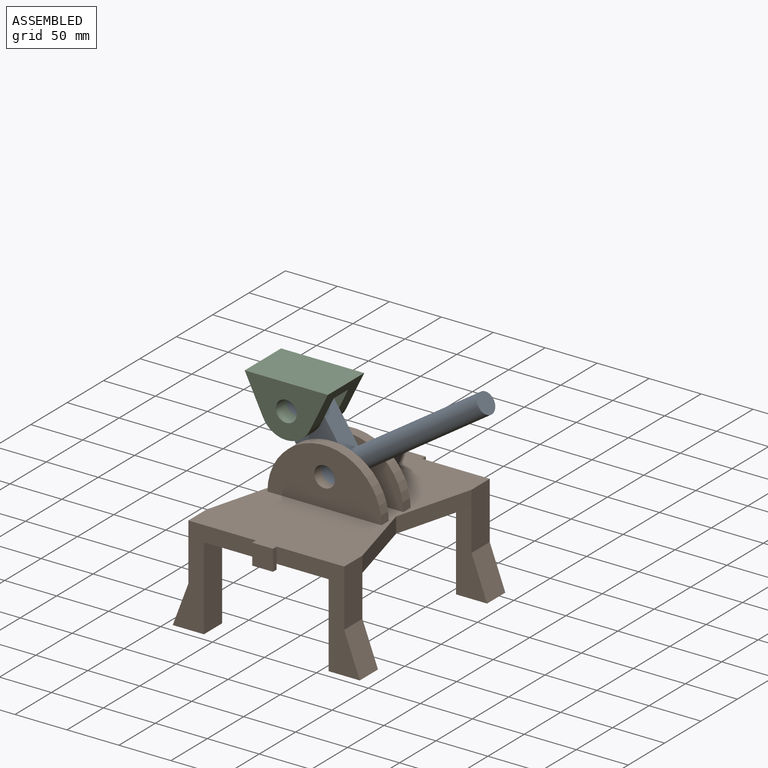
[diagram: assembled view]
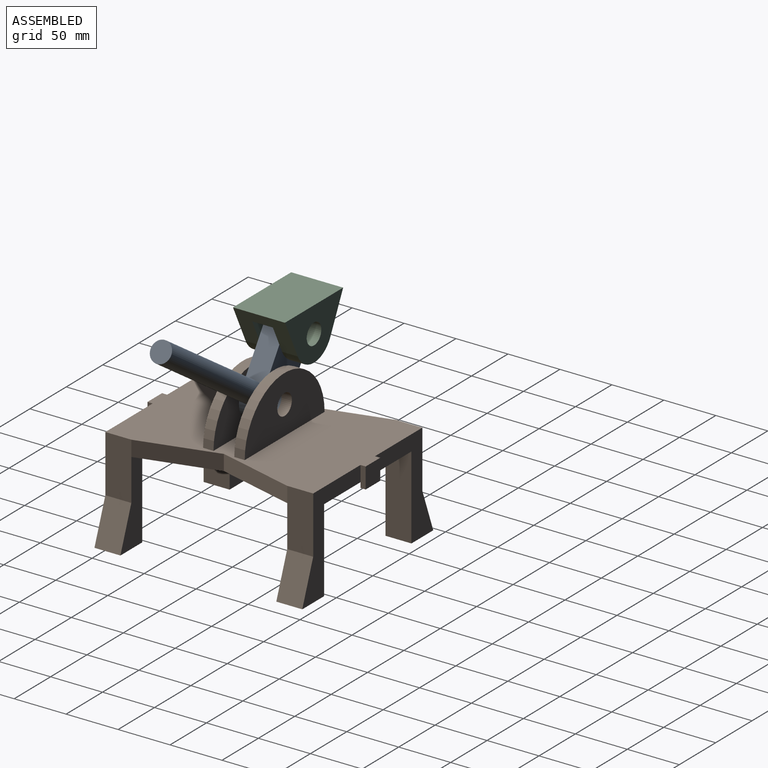
[diagram: assembled view, second angle]
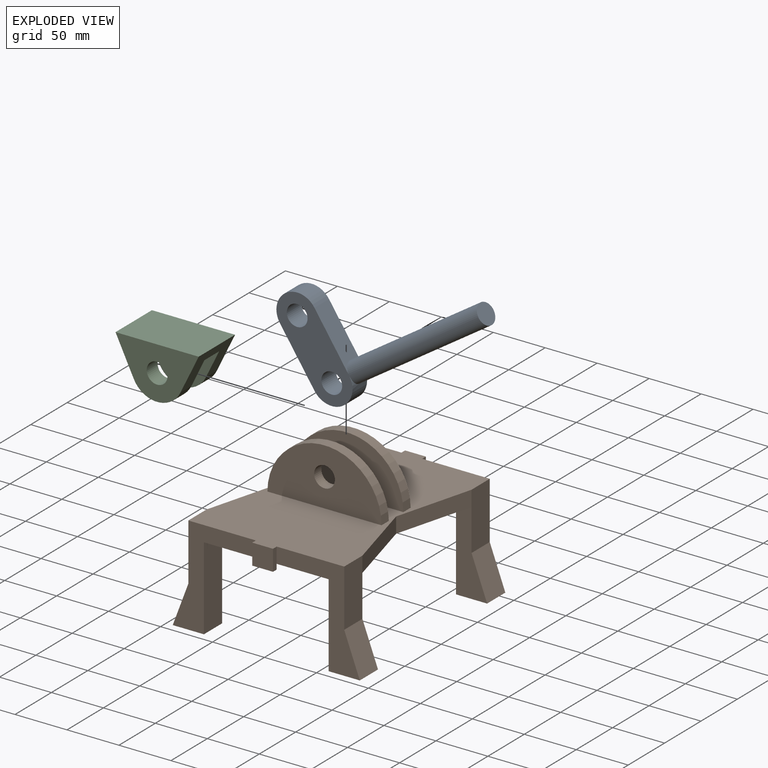
[diagram: exploded view]
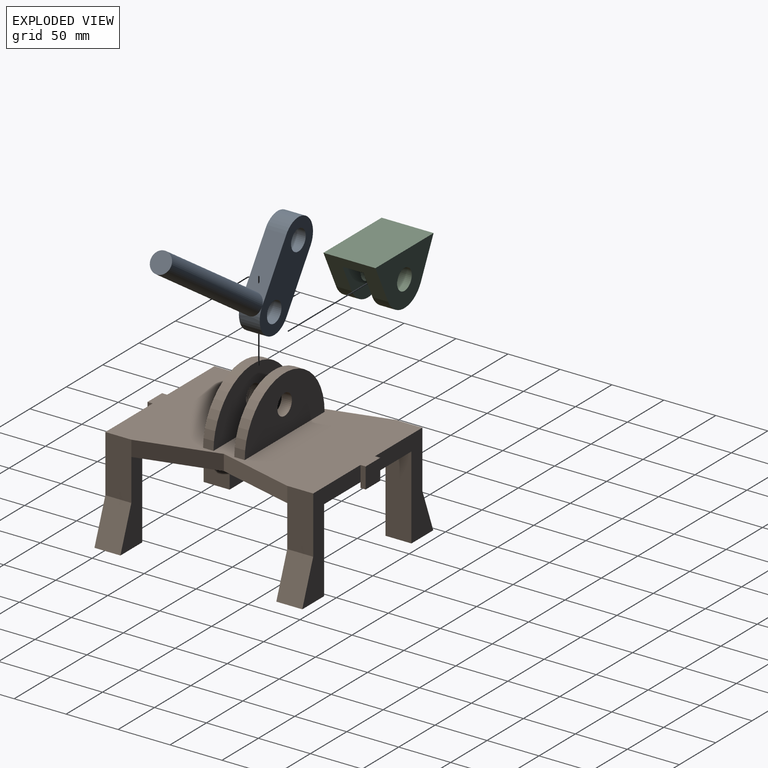
[diagram: exploded view, second angle]
ASSEMBLY  parts=3 mates=4
PART A: 10 faces, bbox 200.3x20x122.6 mm
  f0: plane 49.92x33.28mm, normal (-0.83,0,-0.55), area 1200mm2, adj f1,f5,f6,f7
  f1: cylinder r=20mm len=36.64mm, axis (0,1,0), area 1094.1mm2, adj f0,f6,f7,f8
  f2: plane 49.92x33.28mm, normal (0.83,0,0.55), area 1042.9mm2, adj f5,f6,f7,f8
  f3: cylinder r=10mm len=20mm, axis (0,1,0), area 1256.6mm2, adj f6,f7
  f4: cylinder r=10mm len=20mm, axis (0,1,0), area 1256.6mm2, adj f6,f7
  f5: cylinder r=20mm len=36.64mm, axis (0,1,0), area 1256.6mm2, adj f0,f2,f6,f7
  f6: plane 89.92x73.28mm, normal (0,-1,0), area 3028.3mm2, adj f0,f1,f2,f3,f4,f5
  f7: plane 89.92x73.28mm, normal (0,1,0), area 3028.3mm2, adj f0,f1,f2,f3,f4,f5
  f8: cylinder r=10mm len=138.13mm, axis (0.83,0,0.55), area 9466.1mm2, adj f1,f2,f9
  f9: plane 20x16.64mm, normal (0.83,0,0.55), area 314.2mm2, adj f8
PART B: 48 faces, bbox 180x210x149.9 mm
  f0: plane 210x150mm, normal (0,0,1), area 24989.4mm2, adj f3,f5,f11,f12,f15,f16,f17,f19
  f1: plane 30x25mm, normal (0,0,-1), area 750mm2, adj f3,f4,f6,f7
  f2: plane 30x25mm, normal (0,0,-1), area 750mm2, adj f9,f10,f12,f13
  f3: plane 95x80mm, normal (0,-1,0), area 2475mm2, adj f0,f1,f5,f6,f7,f8,f15
  f4: plane 80x30mm, normal (0,1,0), area 1500mm2, adj f1,f5,f6,f7,f8
  f5: plane 55x25mm, normal (-1,0,0), area 1375mm2, adj f0,f3,f4,f6,f38
  f6: plane 40x25mm, normal (-0.94,0,0.35), area 1068mm2, adj f1,f3,f4,f5
  f7: plane 80x25mm, normal (1,0,0), area 2000mm2, adj f1,f3,f4,f8
  f8: plane 200x150mm, normal (0,0,-1), area 25485.6mm2, adj f3,f4,f7,f9,f12,f13,f14,f19
  f9: plane 80x25mm, normal (-1,0,0), area 2000mm2, adj f2,f8,f12,f13
  f10: plane 40x25mm, normal (0.94,0,0.35), area 1068mm2, adj f2,f11,f12,f13
  f11: plane 55x25mm, normal (1,0,0), area 1375mm2, adj f0,f10,f12,f13,f36
  f12: plane 95x80mm, normal (0,-1,0), area 2475mm2, adj f0,f2,f8,f9,f10,f11,f17
  f13: plane 80x30mm, normal (0,1,0), area 1500mm2, adj f2,f8,f9,f10,f11
  f14: plane 20x5mm, normal (0,1,0), area 100mm2, adj f8,f15,f17,f18
  f15: plane 20x5mm, normal (-1,0,0), area 100mm2, adj f0,f3,f14,f16,f18
  f16: plane 20x20mm, normal (0,-1,0), area 400mm2, adj f0,f15,f17,f18
  f17: plane 20x5mm, normal (1,0,0), area 100mm2, adj f0,f12,f14,f16,f18
  f18: plane 20x5mm, normal (0,0,-1), area 100mm2, adj f14,f15,f16,f17
  f19: plane 95x80mm, normal (0,1,0), area 2475mm2, adj f0,f8,f21,f22,f23,f24,f32
  f20: plane 80x30mm, normal (0,-1,0), area 1500mm2, adj f8,f21,f22,f23,f24
  f21: plane 55x25mm, normal (-1,0,0), area 1375mm2, adj f0,f19,f20,f22,f37
  f22: plane 40x25mm, normal (-0.94,0,0.35), area 1068mm2, adj f19,f20,f21,f23
  f23: plane 30x25mm, normal (0,0,-1), area 750mm2, adj f19,f20,f22,f24
  f24: plane 80x25mm, normal (1,0,0), area 2000mm2, adj f8,f19,f20,f23
  f25: plane 80x25mm, normal (-1,0,0), area 2000mm2, adj f8,f26,f29,f30
  f26: plane 30x25mm, normal (0,0,-1), area 750mm2, adj f25,f27,f29,f30
  f27: plane 40x25mm, normal (0.94,0,0.35), area 1068mm2, adj f26,f28,f29,f30
  f28: plane 55x25mm, normal (1,0,0), area 1375mm2, adj f0,f27,f29,f30,f39
  f29: plane 95x80mm, normal (0,1,0), area 2475mm2, adj f0,f8,f25,f26,f27,f28,f34
  f30: plane 80x30mm, normal (0,-1,0), area 1500mm2, adj f8,f25,f26,f27,f28
  f31: plane 20x5mm, normal (0,-1,0), area 100mm2, adj f8,f32,f34,f35
  f32: plane 20x5mm, normal (-1,0,0), area 100mm2, adj f0,f19,f31,f33,f35
  f33: plane 20x20mm, normal (0,1,0), area 400mm2, adj f0,f32,f34,f35
  f34: plane 20x5mm, normal (1,0,0), area 100mm2, adj f0,f29,f31,f33,f35
  f35: plane 20x5mm, normal (0,0,-1), area 100mm2, adj f31,f32,f33,f34
  f36: plane 75x20.1mm, normal (0.97,0.26,0), area 1164.7mm2, adj f0,f8,f11,f39
  f37: plane 75x20.1mm, normal (-0.97,-0.26,0), area 1164.7mm2, adj f0,f8,f21,f38
  f38: plane 75x20.1mm, normal (-0.97,0.26,0), area 1164.7mm2, adj f0,f5,f8,f37
  f39: plane 75x20.1mm, normal (0.97,-0.26,0), area 1164.7mm2, adj f0,f8,f28,f36
  f40: cylinder r=54.9mm len=109.81mm, axis (0,-1,0), area 1724.9mm2, adj f0,f42,f43
  f41: cylinder r=10mm len=20mm, axis (0,-1,0), area 628.3mm2, adj f42,f43
  f42: plane 109.81x54.9mm, normal (0,1,0), area 4420.9mm2, adj f0,f40,f41
  f43: plane 109.81x54.9mm, normal (0,-1,0), area 4420.9mm2, adj f0,f40,f41
  f44: cylinder r=54.9mm len=109.81mm, axis (0,1,0), area 1724.9mm2, adj f0,f46,f47
  f45: cylinder r=10mm len=20mm, axis (0,1,0), area 628.3mm2, adj f46,f47
  f46: plane 109.81x54.9mm, normal (0,-1,0), area 4420.9mm2, adj f0,f44,f45
  f47: plane 109.81x54.9mm, normal (0,1,0), area 4420.9mm2, adj f0,f44,f45
PART C: 12 faces, bbox 80x50x50 mm
  f0: plane 70.25x40mm, normal (0,1,0), area 1632.8mm2, adj f1,f3,f4,f5,f7
  f1: plane 50x35.96mm, normal (0.9,0,-0.44), area 1422.5mm2, adj f0,f2,f4,f6,f7,f8,f9,f11
  f2: plane 80x50mm, normal (0,0,1), area 4000mm2, adj f1,f3,f6,f11
  f3: plane 50x35.96mm, normal (-0.9,0,-0.44), area 1422.5mm2, adj f0,f2,f4,f6,f7,f8,f9,f11
  f4: cylinder r=25mm len=44.94mm, axis (0,1,0), area 837.9mm2, adj f0,f1,f3,f6
  f5: cylinder r=10mm len=20mm, axis (0,1,0), area 942.5mm2, adj f0,f6
  f6: plane 80x50mm, normal (0,-1,0), area 2384.1mm2, adj f1,f2,f3,f4,f5
  f7: plane 70.25x20mm, normal (0,0,-1), area 1405mm2, adj f0,f1,f3,f8
  f8: plane 70.25x40mm, normal (0,-1,0), area 1632.8mm2, adj f1,f3,f7,f9,f10
  f9: cylinder r=25mm len=44.94mm, axis (0,-1,0), area 837.9mm2, adj f1,f3,f8,f11
  f10: cylinder r=10mm len=20mm, axis (0,-1,0), area 942.5mm2, adj f8,f11
  f11: plane 80x50mm, normal (0,1,0), area 2384.1mm2, adj f1,f2,f3,f9,f10
PLACE A t=(53.41,157.62,182.22)mm
PLACE B t=(53.41,72.62,59.77)mm
PLACE C t=(20.13,137.62,232.15)mm
MATE planar A.f6 <-> C.f0  axis (0,-1,0) through (53.41,137.62,218.28)mm
MATE cylindrical C.f5 <-> A.f4  axis (0,1,0) through (20.13,122.62,232.15)mm
MATE cylindrical A.f3 <-> B.f41  axis (0,-1,0) through (53.41,137.62,182.22)mm
MATE planar A.f6 <-> B.f47  axis (0,-1,0) through (36.77,137.62,207.18)mm
